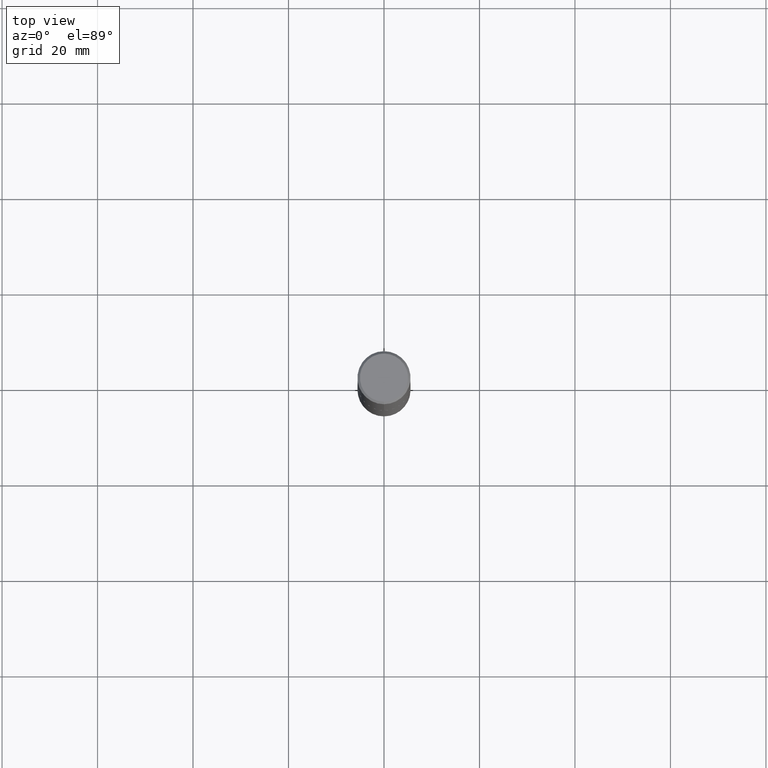
[diagram: clean part render]
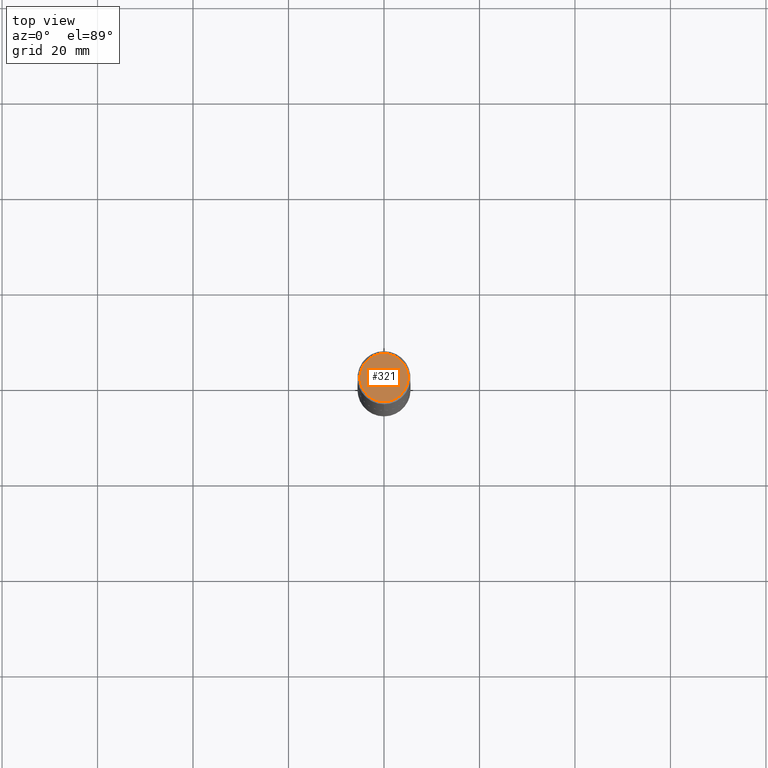
[diagram: same view with one face highlighted and labeled with its STEP entity id]
A machine part, top view. The second image highlights one B-rep face of the part: STEP entity #321.
In plain terms, the highlighted planar face has unit normal (0, -0, -1).
Its self-contained STEP definition (entity closure, byte-faithful):
#14 = VERTEX_POINT ( 'NONE', #407 ) ;
#20 = CARTESIAN_POINT ( 'NONE',  ( -1.432128957034807592E-15, -0.1987500000000002320, 4.679535352411635507E-16 ) ) ;
#43 = AXIS2_PLACEMENT_3D ( 'NONE', #367, #333, #52 ) ;
#51 = EDGE_CURVE ( 'NONE', #98, #14, #158, .T. ) ;
#52 = DIRECTION ( 'NONE',  ( -6.982962677686265922E-15, -1.000000000000000000, 3.492117266192603203E-15 ) ) ;
#64 = ORIENTED_EDGE ( 'NONE', *, *, #51, .T. ) ;
#93 = DIRECTION ( 'NONE',  ( 2.445024740490438590E-29, -3.492117266192602415E-15, -1.000000000000000000 ) ) ;
#98 = VERTEX_POINT ( 'NONE', #20 ) ;
#130 = CIRCLE ( 'NONE', #43, 0.1987500000000002320 ) ;
#158 = CIRCLE ( 'NONE', #390, 0.1987500000000002320 ) ;
#168 = ORIENTED_EDGE ( 'NONE', *, *, #261, .T. ) ;
#176 = CARTESIAN_POINT ( 'NONE',  ( 5.528317600516741827E-45, -7.895843762255161578E-31, -2.261047714146171219E-16 ) ) ;
#226 = DIRECTION ( 'NONE',  ( 6.982962677686265922E-15, 1.000000000000000000, -3.492117266192602415E-15 ) ) ;
#261 = EDGE_CURVE ( 'NONE', #14, #98, #130, .T. ) ;
#262 = FACE_OUTER_BOUND ( 'NONE', #279, .T. ) ;
#279 = EDGE_LOOP ( 'NONE', ( #168, #64 ) ) ;
#321 = ADVANCED_FACE ( 'NONE', ( #262 ), #342, .F. ) ;
#333 = DIRECTION ( 'NONE',  ( -2.445024740490438590E-29, 3.492117266192602809E-15, 1.000000000000000000 ) ) ;
#342 = PLANE ( 'NONE',  #385 ) ;
#344 = DIRECTION ( 'NONE',  ( -2.445024740490438590E-29, 3.492117266192602809E-15, 1.000000000000000000 ) ) ;
#367 = CARTESIAN_POINT ( 'NONE',  ( 5.528317600516741827E-45, -7.895843762255161578E-31, -2.261047714146171219E-16 ) ) ;
#372 = DIRECTION ( 'NONE',  ( -6.982962677686265922E-15, -1.000000000000000000, 3.492117266192603203E-15 ) ) ;
#384 = CARTESIAN_POINT ( 'NONE',  ( 1.387863832190147008E-15, 0.1987500000000002320, -8.071106923630893321E-16 ) ) ;
#385 = AXIS2_PLACEMENT_3D ( 'NONE', #384, #93, #226 ) ;
#390 = AXIS2_PLACEMENT_3D ( 'NONE', #176, #344, #372 ) ;
#407 = CARTESIAN_POINT ( 'NONE',  ( 1.457693458967009122E-15, 0.1987500000000002320, -9.201630780703978931E-16 ) ) ;